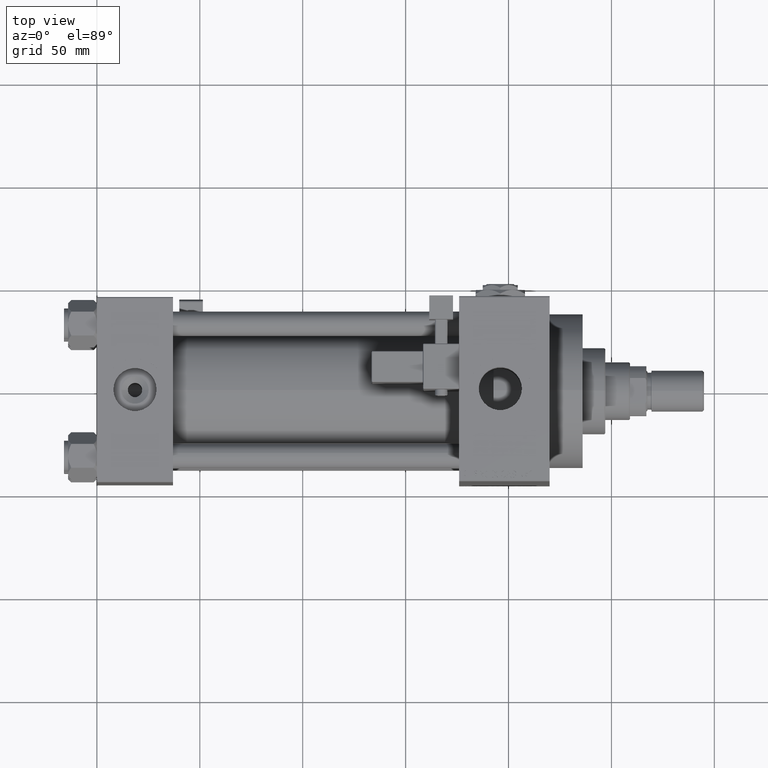
[diagram: clean part render]
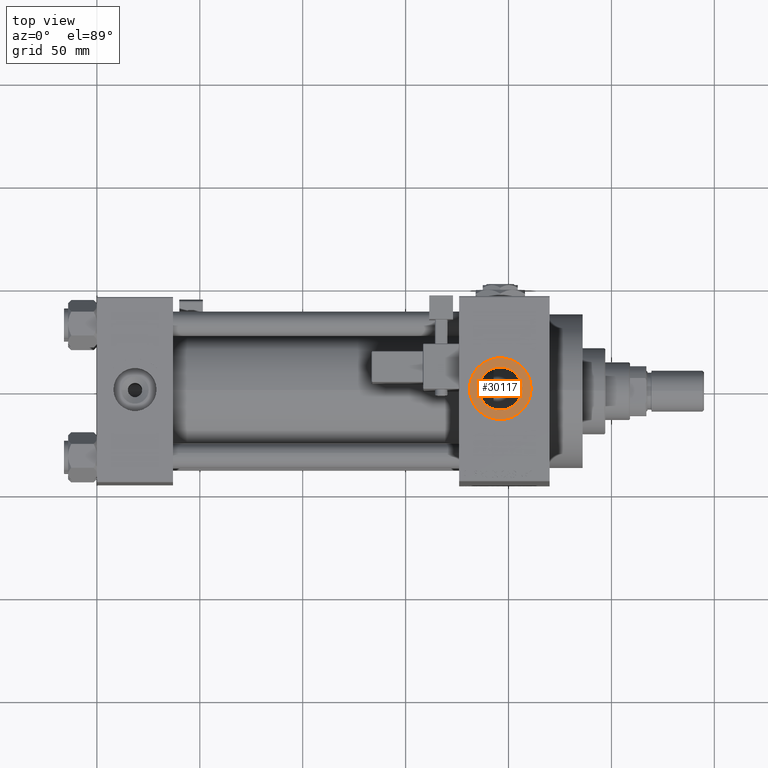
[diagram: same view with one face highlighted and labeled with its STEP entity id]
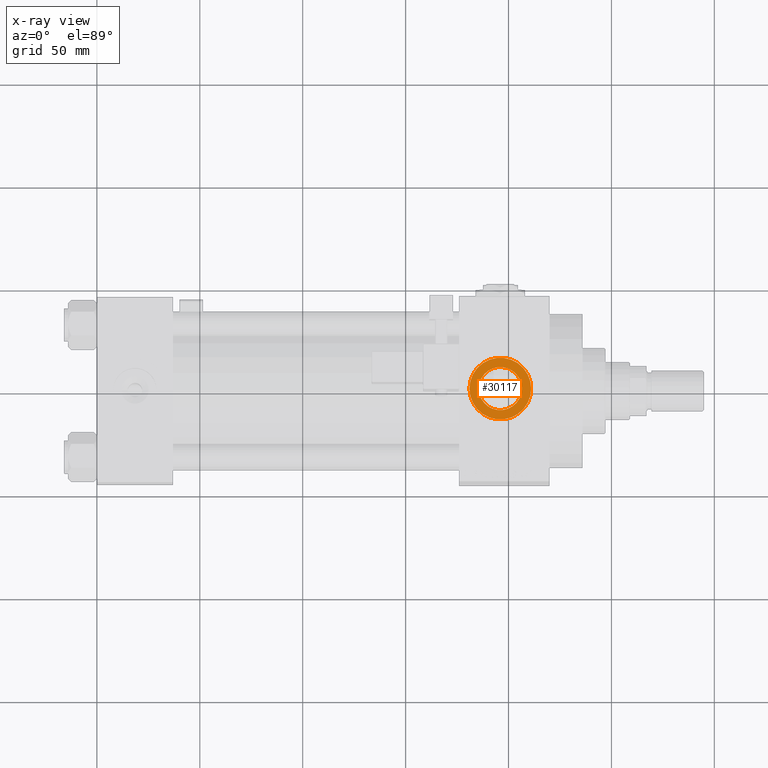
[diagram: x-ray of the same camera — body ghosted, the highlighted face saturated]
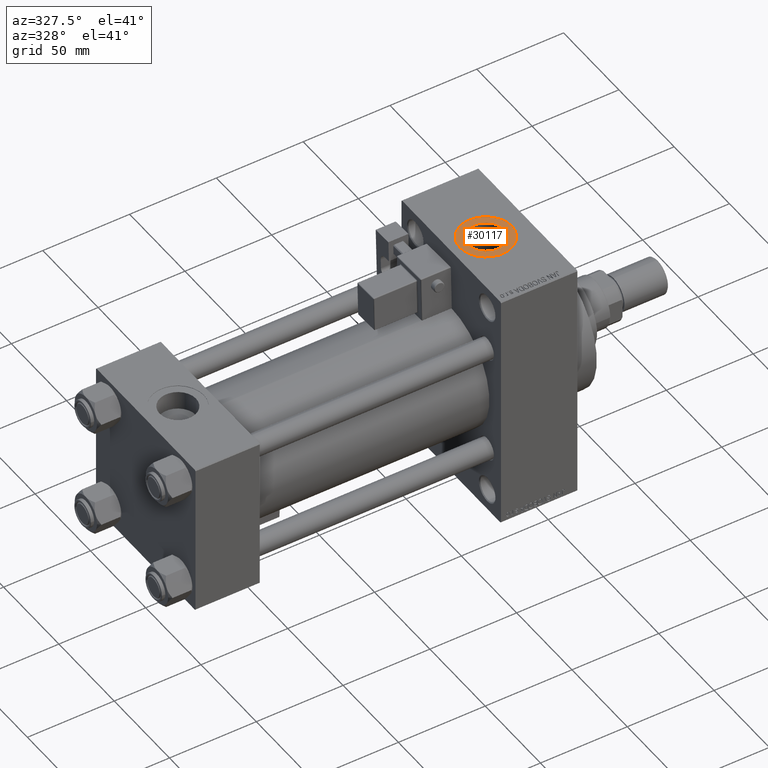
[diagram: same view with one face highlighted and labeled with its STEP entity id]
A machine part, top view. The second image highlights one B-rep face of the part: STEP entity #30117.
The next image is the same camera in x-ray: the body ghosted, the highlighted face saturated — about 0% of this face is hidden behind the body in this view.
A second angle (auxiliary view) of the same face is appended — the face is thin or edge-on in the first view.
In plain terms, the highlighted planar face has unit normal (0, 0, 1).
Its self-contained STEP definition (entity closure, byte-faithful):
#475 = DIRECTION ( 'NONE',  ( -0.000000000000000000, -0.000000000000000000, -1.000000000000000000 ) ) ;
#2760 = DIRECTION ( 'NONE',  ( 1.000000000000000000, 0.000000000000000000, 0.000000000000000000 ) ) ;
#4556 = CARTESIAN_POINT ( 'NONE',  ( 185.5200000000000102, -1.094803260394251466E-14, 70.79999999999996874 ) ) ;
#5578 = PLANE ( 'NONE',  #37656 ) ;
#8346 = DIRECTION ( 'NONE',  ( 1.000000000000000000, 0.000000000000000000, -0.000000000000000000 ) ) ;
#10866 = DIRECTION ( 'NONE',  ( 1.000000000000000000, 0.000000000000000000, 0.000000000000000000 ) ) ;
#11140 = CARTESIAN_POINT ( 'NONE',  ( 181.0000000000000000, -9.111062405221479547E-15, 70.79999999999996874 ) ) ;
#11457 = CARTESIAN_POINT ( 'NONE',  ( 206.4799999999999898, -9.664602758436089169E-15, 70.79999999999996874 ) ) ;
#12760 = CARTESIAN_POINT ( 'NONE',  ( 196.0000000000000000, -1.094803260394251466E-14, 70.79999999999996874 ) ) ;
#13433 = FACE_OUTER_BOUND ( 'NONE', #44611, .T. ) ;
#14184 = AXIS2_PLACEMENT_3D ( 'NONE', #12760, #475, #40125 ) ;
#14785 = CARTESIAN_POINT ( 'NONE',  ( 196.0000000000000000, -1.094803260394251466E-14, 70.79999999999996874 ) ) ;
#20097 = CARTESIAN_POINT ( 'NONE',  ( 196.0000000000000000, -1.094803260394251466E-14, 70.79999999999996874 ) ) ;
#23573 = CIRCLE ( 'NONE', #36875, 15.00000000000001421 ) ;
#24421 = EDGE_CURVE ( 'NONE', #40361, #31009, #42414, .T. ) ;
#25255 = VERTEX_POINT ( 'NONE', #11140 ) ;
#25730 = EDGE_CURVE ( 'NONE', #31009, #40361, #36645, .T. ) ;
#25968 = DIRECTION ( 'NONE',  ( 1.000000000000000000, 0.000000000000000000, 0.000000000000000000 ) ) ;
#27193 = EDGE_CURVE ( 'NONE', #25255, #31965, #39232, .T. ) ;
#27483 = CARTESIAN_POINT ( 'NONE',  ( 211.0000000000000284, -1.094803260394251466E-14, 70.79999999999996874 ) ) ;
#27504 = ORIENTED_EDGE ( 'NONE', *, *, #27193, .T. ) ;
#27537 = AXIS2_PLACEMENT_3D ( 'NONE', #50486, #51015, #25968 ) ;
#29010 = EDGE_LOOP ( 'NONE', ( #38002, #38178 ) ) ;
#30117 = ADVANCED_FACE ( 'NONE', ( #49143, #13433 ), #5578, .T. ) ;
#30799 = EDGE_CURVE ( 'NONE', #31965, #25255, #23573, .T. ) ;
#31009 = VERTEX_POINT ( 'NONE', #4556 ) ;
#31965 = VERTEX_POINT ( 'NONE', #27483 ) ;
#34343 = DIRECTION ( 'NONE',  ( -0.000000000000000000, -0.000000000000000000, -1.000000000000000000 ) ) ;
#36645 = CIRCLE ( 'NONE', #14184, 10.47999999999998977 ) ;
#36875 = AXIS2_PLACEMENT_3D ( 'NONE', #14785, #46574, #10866 ) ;
#37656 = AXIS2_PLACEMENT_3D ( 'NONE', #20097, #43566, #8346 ) ;
#38002 = ORIENTED_EDGE ( 'NONE', *, *, #25730, .T. ) ;
#38178 = ORIENTED_EDGE ( 'NONE', *, *, #24421, .T. ) ;
#39041 = ORIENTED_EDGE ( 'NONE', *, *, #30799, .T. ) ;
#39232 = CIRCLE ( 'NONE', #27537, 15.00000000000001421 ) ;
#40125 = DIRECTION ( 'NONE',  ( 1.000000000000000000, 0.000000000000000000, 0.000000000000000000 ) ) ;
#40361 = VERTEX_POINT ( 'NONE', #11457 ) ;
#41632 = CARTESIAN_POINT ( 'NONE',  ( 196.0000000000000000, -1.094803260394251466E-14, 70.79999999999996874 ) ) ;
#42414 = CIRCLE ( 'NONE', #49903, 10.47999999999998977 ) ;
#43566 = DIRECTION ( 'NONE',  ( 0.000000000000000000, 0.000000000000000000, 1.000000000000000000 ) ) ;
#44611 = EDGE_LOOP ( 'NONE', ( #39041, #27504 ) ) ;
#46574 = DIRECTION ( 'NONE',  ( 0.000000000000000000, 0.000000000000000000, 1.000000000000000000 ) ) ;
#49143 = FACE_BOUND ( 'NONE', #29010, .T. ) ;
#49903 = AXIS2_PLACEMENT_3D ( 'NONE', #41632, #34343, #2760 ) ;
#50486 = CARTESIAN_POINT ( 'NONE',  ( 196.0000000000000000, -1.094803260394251466E-14, 70.79999999999996874 ) ) ;
#51015 = DIRECTION ( 'NONE',  ( 0.000000000000000000, 0.000000000000000000, 1.000000000000000000 ) ) ;